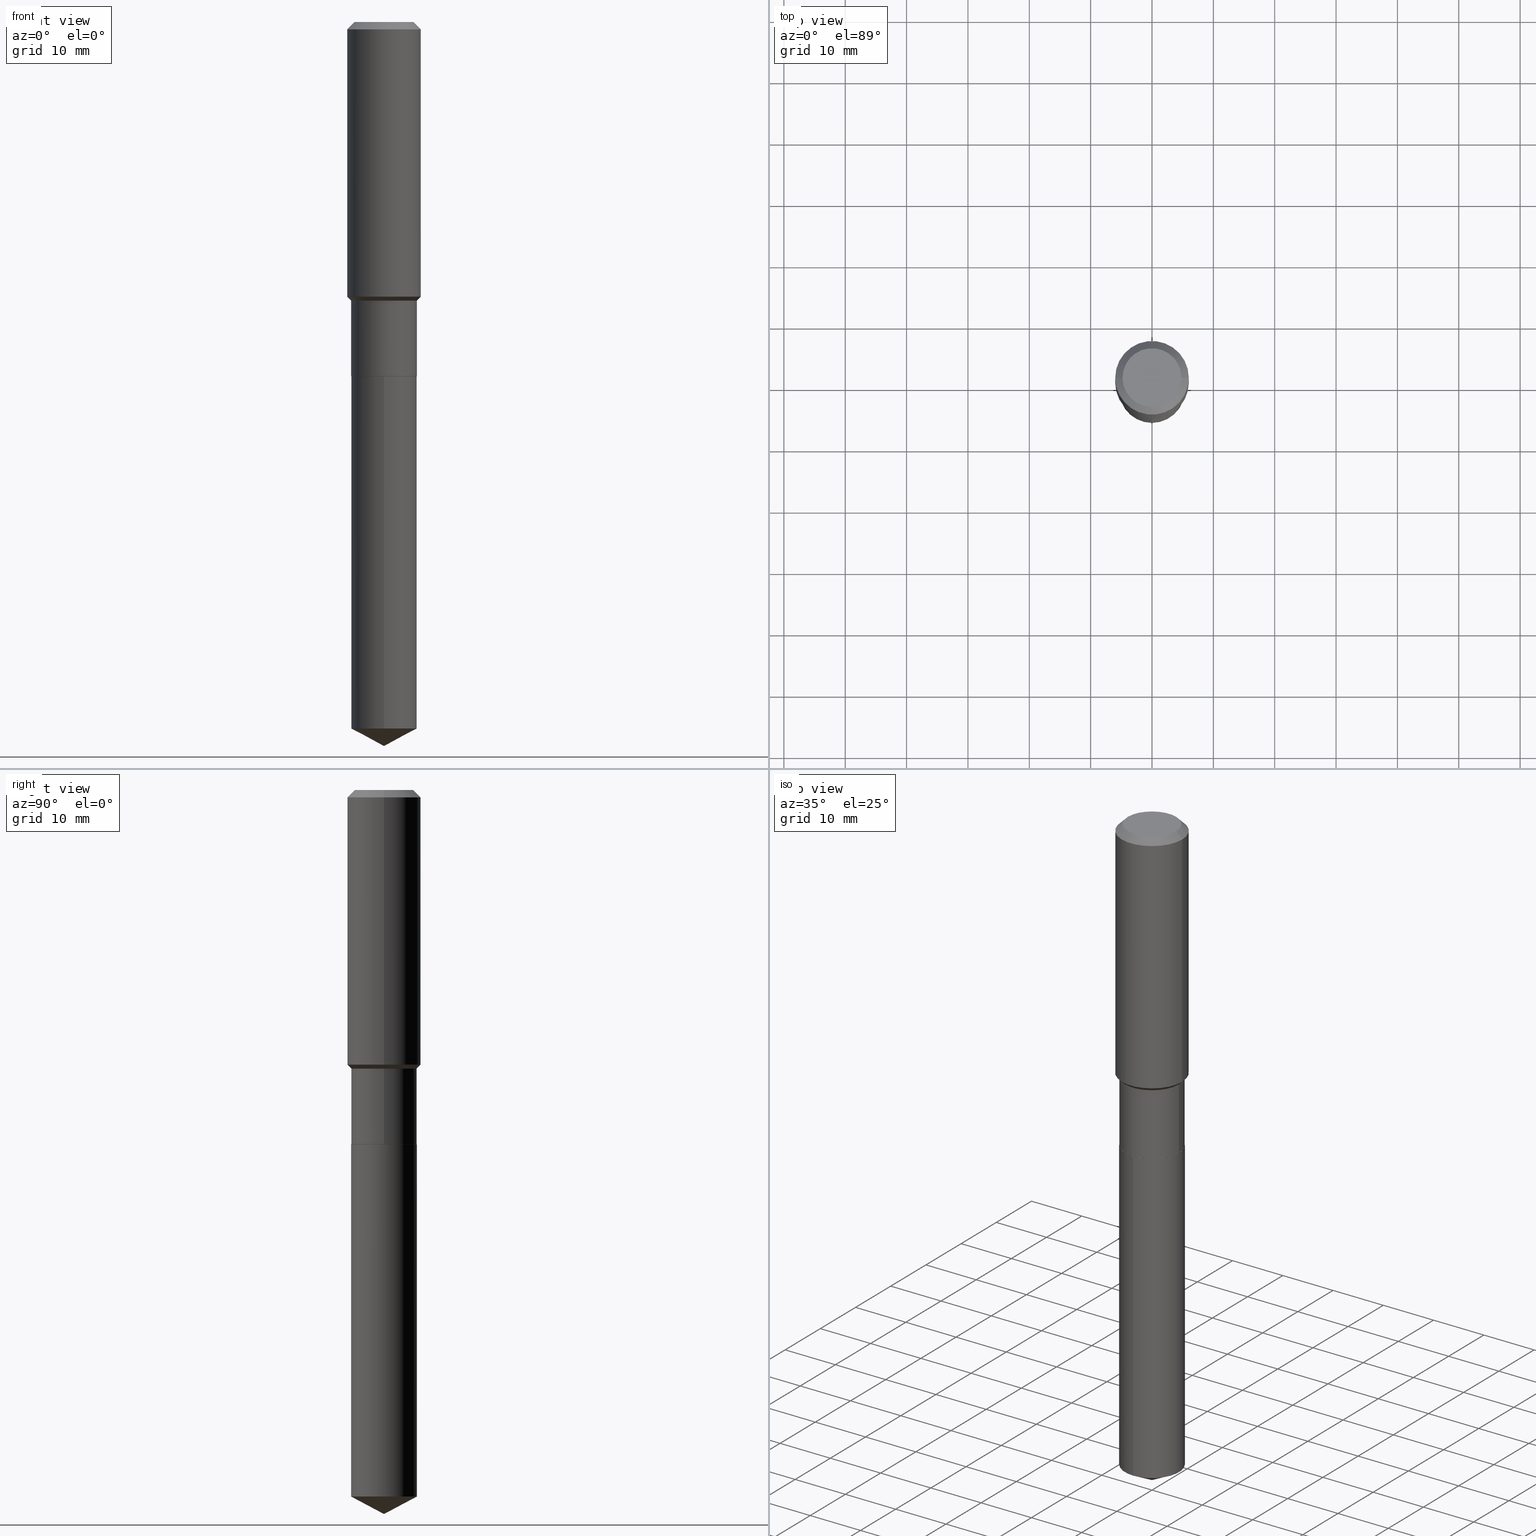
[diagram: canonical four-view strip — front | top / right | iso, engineering-drawing reading convention]
A machine part, canonical four-view strip (front | top / right | iso — engineering-drawing reading convention). The complete STEP part file that produces these views, byte-faithful:
ISO-10303-21;
HEADER;
FILE_DESCRIPTION (( 'STEP AP203' ),
    '1' );
FILE_NAME ('55024.STEP',
    '2024-04-24T16:28:49',
    ( '' ),
    ( '' ),
    'SwSTEP 2.0',
    'SolidWorks 2023',
    '' );
FILE_SCHEMA (( 'CONFIG_CONTROL_DESIGN' ));
ENDSEC;

DATA;
#1 = ORIENTED_EDGE ( 'NONE', *, *, #72, .T. ) ;
#2 = AXIS2_PLACEMENT_3D ( 'NONE', #451, #412, #225 ) ;
#3 = DESIGN_CONTEXT ( 'detailed design', #216, 'design' ) ;
#4 = EDGE_LOOP ( 'NONE', ( #407, #480, #155, #389 ) ) ;
#5 = EDGE_CURVE ( 'NONE', #267, #258, #435, .T. ) ;
#6 = EDGE_LOOP ( 'NONE', ( #343, #350, #453, #188 ) ) ;
#7 = LINE ( 'NONE', #323, #286 ) ;
#8 = CARTESIAN_POINT ( 'NONE',  ( 0.2104499999999999982, -9.405352430575661814E-15, -2.272900000000000365 ) ) ;
#9 = DIRECTION ( 'NONE',  ( -6.982962677686265922E-15, -1.000000000000000000, 2.590043132177542855E-15 ) ) ;
#10 = APPROVAL_STATUS ( 'not_yet_approved' ) ;
#11 = AXIS2_PLACEMENT_3D ( 'NONE', #361, #318, #178 ) ;
#12 = LOCAL_TIME ( 12, 28, 49.00000000000000000, #351 ) ;
#13 = CARTESIAN_POINT ( 'NONE',  ( -0.2109499999999999986, -5.588991790832597522E-15, -2.272400000000000198 ) ) ;
#14 = EDGE_CURVE ( 'NONE', #215, #448, #90, .T. ) ;
#15 = LINE ( 'NONE', #471, #386 ) ;
#16 = ADVANCED_FACE ( 'NONE', ( #135 ), #396, .T. ) ;
#17 = PERSON_AND_ORGANIZATION ( #85, #189 ) ;
#18 = DIRECTION ( 'NONE',  ( 2.445468806185136597E-29, -3.491481338843145583E-15, -1.000000000000000000 ) ) ;
#19 = CARTESIAN_POINT ( 'NONE',  ( -0.2362000000000001043, 1.678301941865357380E-15, -1.161852468318209317E-29 ) ) ;
#20 = COORDINATED_UNIVERSAL_TIME_OFFSET ( 5, 0, .BEHIND. ) ;
#21 = DIRECTION ( 'NONE',  ( 1.000000000000000000, -6.982962677686268288E-15, 0.000000000000000000 ) ) ;
#22 = CYLINDRICAL_SURFACE ( 'NONE', #331, 0.2109499999999999986 ) ;
#23 = CIRCLE ( 'NONE', #339, 0.2104499999999999982 ) ;
#24 = LINE ( 'NONE', #214, #348 ) ;
#25 = CARTESIAN_POINT ( 'NONE',  ( 5.558306049578198458E-29, -7.935787935056587256E-15, -2.272900000000000365 ) ) ;
#26 = VERTEX_POINT ( 'NONE', #415 ) ;
#27 = EDGE_CURVE ( 'NONE', #330, #327, #358, .T. ) ;
#28 = DIRECTION ( 'NONE',  ( -2.438088387897960049E-29, 3.491481338843145188E-15, 1.000000000000000000 ) ) ;
#29 = DIRECTION ( 'NONE',  ( -2.445468806185136597E-29, 3.491481338843145583E-15, 1.000000000000000000 ) ) ;
#30 = CARTESIAN_POINT ( 'NONE',  ( 4.310016497460993523E-29, -6.153561285644102082E-15, -1.762449999999999850 ) ) ;
#31 = ORIENTED_EDGE ( 'NONE', *, *, #430, .T. ) ;
#32 = CONICAL_SURFACE ( 'NONE', #449, 74.04434902938353957, 1.082104136236486491 ) ;
#33 = CC_DESIGN_APPROVAL ( #62, ( #177 ) ) ;
#34 =( NAMED_UNIT ( * ) PLANE_ANGLE_UNIT ( ) SI_UNIT ( $, .RADIAN. ) );
#35 = ORIENTED_EDGE ( 'NONE', *, *, #249, .T. ) ;
#36 = CYLINDRICAL_SURFACE ( 'NONE', #160, 0.2109499999999999709 ) ;
#37 = ORIENTED_EDGE ( 'NONE', *, *, #112, .T. ) ;
#38 = PRODUCT_RELATED_PRODUCT_CATEGORY ( 'detail', '', ( #344 ) ) ;
#39 = FACE_OUTER_BOUND ( 'NONE', #349, .T. ) ;
#40 = CARTESIAN_POINT ( 'NONE',  ( -9.427742298522546243E-47, 1.346031739168365344E-32, 3.855188123715862256E-18 ) ) ;
#41 = EDGE_CURVE ( 'NONE', #142, #136, #338, .T. ) ;
#42 = ADVANCED_FACE ( 'NONE', ( #233 ), #46, .T. ) ;
#43 = ORIENTED_EDGE ( 'NONE', *, *, #63, .T. ) ;
#44 = CLOSED_SHELL ( 'NONE', ( #175, #89, #388, #103, #55, #42, #262, #464, #194, #149, #266, #213 ) ) ;
#45 = AXIS2_PLACEMENT_3D ( 'NONE', #439, #364, #21 ) ;
#46 = CYLINDRICAL_SURFACE ( 'NONE', #93, 0.2109499999999999709 ) ;
#47 = ORIENTED_EDGE ( 'NONE', *, *, #355, .F. ) ;
#48 = CARTESIAN_POINT ( 'NONE',  ( 0.000000000000000000, 0.000000000000000000, 0.000000000000000000 ) ) ;
#49 = PERSON_AND_ORGANIZATION_ROLE ( 'creator' ) ;
#50 = AXIS2_PLACEMENT_3D ( 'NONE', #181, #340, #332 ) ;
#51 = DIRECTION ( 'NONE',  ( 1.000000000000000000, -6.982962677686271444E-15, 0.000000000000000000 ) ) ;
#52 = EDGE_LOOP ( 'NONE', ( #282, #301, #192, #185 ) ) ;
#53 = DIRECTION ( 'NONE',  ( 1.000000000000000000, -6.982962677686268288E-15, 0.000000000000000000 ) ) ;
#54 = PERSON_AND_ORGANIZATION ( #85, #189 ) ;
#55 = ADVANCED_FACE ( 'NONE', ( #257 ), #36, .T. ) ;
#56 = DIRECTION ( 'NONE',  ( 0.7071067811864267805, -2.468850131080992517E-15, 0.7071067811866682540 ) ) ;
#57 = DIRECTION ( 'NONE',  ( -2.445468806185136877E-29, 3.491481338843145188E-15, 1.000000000000000000 ) ) ;
#58 = DATE_TIME_ROLE ( 'creation_date' ) ;
#59 = AXIS2_PLACEMENT_3D ( 'NONE', #264, #341, #51 ) ;
#60 = FACE_OUTER_BOUND ( 'NONE', #226, .T. ) ;
#61 = EDGE_LOOP ( 'NONE', ( #37, #420, #483, #378 ) ) ;
#62 = APPROVAL ( #10, 'UNSPECIFIED' ) ;
#63 = EDGE_CURVE ( 'NONE', #367, #406, #120, .T. ) ;
#64 = FACE_OUTER_BOUND ( 'NONE', #61, .T. ) ;
#65 = VECTOR ( 'NONE', #56, 39.37007874015748143 ) ;
#66 = VECTOR ( 'NONE', #273, 39.37007874015748854 ) ;
#67 = ORIENTED_EDGE ( 'NONE', *, *, #324, .F. ) ;
#68 = ORIENTED_EDGE ( 'NONE', *, *, #179, .F. ) ;
#69 = DIRECTION ( 'NONE',  ( -2.445577934825511487E-29, 3.491325060418912334E-15, 1.000000000000000000 ) ) ;
#70 = CARTESIAN_POINT ( 'NONE',  ( 0.000000000000000000, 0.000000000000000000, 0.000000000000000000 ) ) ;
#71 = ORIENTED_EDGE ( 'NONE', *, *, #411, .F. ) ;
#72 = EDGE_CURVE ( 'NONE', #367, #335, #229, .T. ) ;
#73 = DIRECTION ( 'NONE',  ( 1.000000000000000000, -6.982962677686266711E-15, 4.876185090822587894E-29 ) ) ;
#74 = ORIENTED_EDGE ( 'NONE', *, *, #456, .T. ) ;
#75 = DIRECTION ( 'NONE',  ( 2.438088387897960049E-29, -3.491481338843145188E-15, -1.000000000000000000 ) ) ;
#76 = EDGE_CURVE ( 'NONE', #268, #144, #408, .T. ) ;
#77 = AXIS2_PLACEMENT_3D ( 'NONE', #329, #69, #334 ) ;
#78 = APPROVAL_PERSON_ORGANIZATION ( #17, #106, #123 ) ;
#79 = ORIENTED_EDGE ( 'NONE', *, *, #76, .F. ) ;
#80 = APPROVAL_DATE_TIME ( #92, #62 ) ;
#81 = ORIENTED_EDGE ( 'NONE', *, *, #27, .F. ) ;
#82 = PRODUCT_DEFINITION_SHAPE ( 'NONE', 'NONE',  #177 ) ;
#83 = DATE_AND_TIME ( #395, #122 ) ;
#84 = ORIENTED_EDGE ( 'NONE', *, *, #440, .T. ) ;
#85 = PERSON ( 'UNSPECIFIED', 'UNSPECIFIED', 'UNSPECIFIED', ('UNSPECIFIED'), ('UNSPECIFIED'), ('UNSPECIFIED') ) ;
#86 = CARTESIAN_POINT ( 'NONE',  ( 0.1889600000000000168, -1.540873453589747738E-15, 3.855188123725863225E-18 ) ) ;
#87 = PERSON_AND_ORGANIZATION ( #85, #189 ) ;
#88 = APPROVAL_ROLE ( '' ) ;
#89 = ADVANCED_FACE ( 'NONE', ( #281 ), #201, .T. ) ;
#90 = LINE ( 'NONE', #98, #147 ) ;
#91 = LINE ( 'NONE', #19, #121 ) ;
#92 = DATE_AND_TIME ( #163, #12 ) ;
#93 = AXIS2_PLACEMENT_3D ( 'NONE', #48, #384, #446 ) ;
#94 = CALENDAR_DATE ( 2024, 24, 4 ) ;
#95 = CARTESIAN_POINT ( 'NONE',  ( 1.155239464041865331E-30, -1.649375784469511612E-16, -0.04724000000000027483 ) ) ;
#96 = CONICAL_SURFACE ( 'NONE', #45, 0.2109499999999999431, 0.7853981633974489451 ) ;
#97 = DIRECTION ( 'NONE',  ( 1.000000000000000000, -6.982962677686271444E-15, 0.000000000000000000 ) ) ;
#98 = CARTESIAN_POINT ( 'NONE',  ( -0.2109499999999999709, 1.498889901085931135E-15, -1.037649357289272242E-29 ) ) ;
#99 = DIRECTION ( 'NONE',  ( 2.445468806185136597E-29, -3.491481338843145583E-15, -1.000000000000000000 ) ) ;
#100 = DIRECTION ( 'NONE',  ( -2.445577934825511487E-29, 3.491325060418912334E-15, 1.000000000000000000 ) ) ;
#101 = CARTESIAN_POINT ( 'NONE',  ( 4.371764584817169348E-29, -6.241721189449891562E-15, -1.787700000000000067 ) ) ;
#102 = DIRECTION ( 'NONE',  ( -6.982962677686265922E-15, -1.000000000000000000, 3.541896320645560869E-15 ) ) ;
#103 = ADVANCED_FACE ( 'NONE', ( #64 ), #96, .T. ) ;
#104 = FACE_OUTER_BOUND ( 'NONE', #52, .T. ) ;
#105 = LENGTH_MEASURE_WITH_UNIT ( LENGTH_MEASURE( 0.02539999999999999897 ), #445 );
#106 = APPROVAL ( #308, 'UNSPECIFIED' ) ;
#107 = EDGE_LOOP ( 'NONE', ( #441, #309, #79 ) ) ;
#108 = CYLINDRICAL_SURFACE ( 'NONE', #2, 0.2362000000000001043 ) ;
#109 = CONICAL_SURFACE ( 'NONE', #392, 0.2104499999999999982, 0.7853981633972775267 ) ;
#110 =( CONVERSION_BASED_UNIT ( 'INCH', #105 ) LENGTH_UNIT ( ) NAMED_UNIT ( #202 ) );
#111 = ORIENTED_EDGE ( 'NONE', *, *, #41, .T. ) ;
#112 = EDGE_CURVE ( 'NONE', #271, #448, #265, .T. ) ;
#113 = CARTESIAN_POINT ( 'NONE',  ( -0.2109499999999999431, -5.588991790832597522E-15, -1.787700000000000067 ) ) ;
#114 = ORIENTED_EDGE ( 'NONE', *, *, #370, .T. ) ;
#115 = AXIS2_PLACEMENT_3D ( 'NONE', #25, #470, #326 ) ;
#116 = CARTESIAN_POINT ( 'NONE',  ( 1.498889901085986750E-15, 0.2109499999999920883, -2.272900000000001253 ) ) ;
#117 = APPROVAL ( #354, 'UNSPECIFIED' ) ;
#118 = EDGE_LOOP ( 'NONE', ( #47, #261, #84, #302 ) ) ;
#119 = EDGE_CURVE ( 'NONE', #271, #26, #457, .T. ) ;
#120 = LINE ( 'NONE', #8, #65 ) ;
#121 = VECTOR ( 'NONE', #57, 39.37007874015748143 ) ;
#122 = LOCAL_TIME ( 12, 28, 49.00000000000000000, #305 ) ;
#123 = APPROVAL_ROLE ( '' ) ;
#124 = DIRECTION ( 'NONE',  ( 1.000000000000000000, 0.000000000000000000, 0.000000000000000000 ) ) ;
#125 = CARTESIAN_POINT ( 'NONE',  ( 0.000000000000000000, 0.000000000000000000, 0.000000000000000000 ) ) ;
#126 = CARTESIAN_POINT ( 'NONE',  ( 5.558306049578198458E-29, -7.935787935056587256E-15, -2.272900000000000365 ) ) ;
#127 = CIRCLE ( 'NONE', #59, 0.2109499999999999986 ) ;
#128 = AXIS2_PLACEMENT_3D ( 'NONE', #131, #141, #366 ) ;
#129 = DIRECTION ( 'NONE',  ( -2.445468806185136597E-29, 3.491481338843145583E-15, 1.000000000000000000 ) ) ;
#130 = DATE_AND_TIME ( #94, #304 ) ;
#131 = CARTESIAN_POINT ( 'NONE',  ( 5.558306049578197337E-29, -7.935787935056587256E-15, -2.272900000000000365 ) ) ;
#132 = ORIENTED_EDGE ( 'NONE', *, *, #251, .F. ) ;
#133 = APPROVAL_ROLE ( '' ) ;
#134 = DIRECTION ( 'NONE',  ( -0.7071067811865479058, 7.493145998870355738E-15, 0.7071067811865470176 ) ) ;
#135 = FACE_OUTER_BOUND ( 'NONE', #235, .T. ) ;
#136 = VERTEX_POINT ( 'NONE', #151 ) ;
#137 = AXIS2_PLACEMENT_3D ( 'NONE', #239, #394, #310 ) ;
#138 = SECURITY_CLASSIFICATION ( '', '', #462 ) ;
#139 = MANIFOLD_SOLID_BREP ( 'Body-Move/Copy2[2]', #44 ) ;
#140 = DIRECTION ( 'NONE',  ( -2.445468806185136877E-29, 3.491481338843145188E-15, 1.000000000000000000 ) ) ;
#141 = DIRECTION ( 'NONE',  ( -2.445577934825511487E-29, 3.491325060418912334E-15, 1.000000000000000000 ) ) ;
#142 = VERTEX_POINT ( 'NONE', #154 ) ;
#143 = DIRECTION ( 'NONE',  ( -1.000000000000000000, 6.982962677686266711E-15, 0.000000000000000000 ) ) ;
#144 = VERTEX_POINT ( 'NONE', #306 ) ;
#145 = FACE_OUTER_BOUND ( 'NONE', #200, .T. ) ;
#146 = CYLINDRICAL_SURFACE ( 'NONE', #232, 0.2362000000000001043 ) ;
#147 = VECTOR ( 'NONE', #246, 39.37007874015748143 ) ;
#148 = CIRCLE ( 'NONE', #212, 0.2109499999999999986 ) ;
#149 = ADVANCED_FACE ( 'NONE', ( #461 ), #190, .F. ) ;
#150 = EDGE_CURVE ( 'NONE', #479, #268, #391, .T. ) ;
#151 = CARTESIAN_POINT ( 'NONE',  ( -0.2361999999999999933, -1.480947490180168921E-15, -0.04724000000000027483 ) ) ;
#152 = ORIENTED_EDGE ( 'NONE', *, *, #411, .T. ) ;
#153 = CONICAL_SURFACE ( 'NONE', #115, 0.2104499999999999982, 0.7853981633972775267 ) ;
#154 = CARTESIAN_POINT ( 'NONE',  ( 0.2361999999999999933, -1.814313362916447440E-15, -0.04724000000000027483 ) ) ;
#155 = ORIENTED_EDGE ( 'NONE', *, *, #312, .T. ) ;
#156 = PERSON_AND_ORGANIZATION_ROLE ( 'design_owner' ) ;
#157 = COORDINATED_UNIVERSAL_TIME_OFFSET ( 5, 0, .BEHIND. ) ;
#158 = DIRECTION ( 'NONE',  ( -1.000000000000000000, 6.982962677686265922E-15, -4.876176775795935793E-29 ) ) ;
#159 = EDGE_CURVE ( 'NONE', #215, #406, #127, .T. ) ;
#160 = AXIS2_PLACEMENT_3D ( 'NONE', #70, #222, #184 ) ;
#161 = CIRCLE ( 'NONE', #280, 0.2109499999999999986 ) ;
#162 = CC_DESIGN_APPROVAL ( #106, ( #287 ) ) ;
#163 = CALENDAR_DATE ( 2024, 24, 4 ) ;
#164 = DIRECTION ( 'NONE',  ( -2.445577934825511206E-29, 3.491325060418912334E-15, 1.000000000000000000 ) ) ;
#165 = CALENDAR_DATE ( 2024, 24, 4 ) ;
#166 = FACE_OUTER_BOUND ( 'NONE', #107, .T. ) ;
#167 = CARTESIAN_POINT ( 'NONE',  ( -0.2361999999999999933, 1.484438206022545019E-15, -0.04724000000000027483 ) ) ;
#168 = ORIENTED_EDGE ( 'NONE', *, *, #5, .F. ) ;
#169 = DIRECTION ( 'NONE',  ( -2.445468806185136597E-29, 3.491481338843145583E-15, 1.000000000000000000 ) ) ;
#170 = VECTOR ( 'NONE', #311, 39.37007874015748854 ) ;
#171 = FACE_OUTER_BOUND ( 'NONE', #4, .T. ) ;
#172 = EDGE_CURVE ( 'NONE', #330, #142, #7, .T. ) ;
#173 = CARTESIAN_POINT ( 'NONE',  ( -0.2104499999999999982, -6.440450747649456231E-15, -2.272900000000000365 ) ) ;
#174 = EDGE_LOOP ( 'NONE', ( #74, #298 ) ) ;
#175 = ADVANCED_FACE ( 'NONE', ( #423 ), #153, .T. ) ;
#176 = CARTESIAN_POINT ( 'NONE',  ( 0.2109499999999999431, -7.714777166307809916E-15, -1.787700000000000067 ) ) ;
#177 = PRODUCT_DEFINITION ( 'UNKNOWN', '', #287, #3 ) ;
#178 = DIRECTION ( 'NONE',  ( 1.000000000000000000, -6.982962677686264344E-15, 0.000000000000000000 ) ) ;
#179 = EDGE_CURVE ( 'NONE', #406, #215, #486, .T. ) ;
#180 = CIRCLE ( 'NONE', #137, 0.2361999999999999933 ) ;
#181 = CARTESIAN_POINT ( 'NONE',  ( 5.558306049578197337E-29, -7.935787935056587256E-15, -2.272900000000000365 ) ) ;
#182 = DIRECTION ( 'NONE',  ( 0.7071067811865453523, -7.319954787623248157E-15, -0.7071067811865496822 ) ) ;
#183 = EDGE_LOOP ( 'NONE', ( #206, #369, #31, #482 ) ) ;
#184 = DIRECTION ( 'NONE',  ( 1.000000000000000000, -6.982962677686266711E-15, 4.876176775795935793E-29 ) ) ;
#185 = ORIENTED_EDGE ( 'NONE', *, *, #440, .F. ) ;
#186 = CARTESIAN_POINT ( 'NONE',  ( 1.155239464041865331E-30, -1.649375784469511612E-16, -0.04724000000000027483 ) ) ;
#187 = AXIS2_PLACEMENT_3D ( 'NONE', #433, #29, #303 ) ;
#188 = ORIENTED_EDGE ( 'NONE', *, *, #430, .F. ) ;
#189 = ORGANIZATION ( 'UNSPECIFIED', 'UNSPECIFIED', '' ) ;
#190 = PLANE ( 'NONE',  #203 ) ;
#191 = ORIENTED_EDGE ( 'NONE', *, *, #456, .F. ) ;
#192 = ORIENTED_EDGE ( 'NONE', *, *, #41, .F. ) ;
#193 = CC_DESIGN_DATE_AND_TIME_ASSIGNMENT ( #83, #58, ( #177 ) ) ;
#194 = ADVANCED_FACE ( 'NONE', ( #60 ), #230, .T. ) ;
#195 = DATE_AND_TIME ( #165, #360 ) ;
#196 = AXIS2_PLACEMENT_3D ( 'NONE', #30, #224, #256 ) ;
#197 = CARTESIAN_POINT ( 'NONE',  ( 5.558306049578197337E-29, -7.935787935056587256E-15, -2.272900000000000365 ) ) ;
#198 = PERSON_AND_ORGANIZATION_ROLE ( 'classification_officer' ) ;
#199 = ADVANCED_FACE ( 'NONE', ( #166 ), #32, .T. ) ;
#200 = EDGE_LOOP ( 'NONE', ( #328, #132 ) ) ;
#201 = CONICAL_SURFACE ( 'NONE', #481, 0.2361999999999999933, 0.7853981633974452814 ) ;
#202 = DIMENSIONAL_EXPONENTS ( 1.000000000000000000, 0.000000000000000000, 0.000000000000000000, 0.000000000000000000, 0.000000000000000000, 0.000000000000000000, 0.000000000000000000 ) ;
#203 = AXIS2_PLACEMENT_3D ( 'NONE', #270, #75, #158 ) ;
#204 = FACE_OUTER_BOUND ( 'NONE', #372, .T. ) ;
#205 = APPLICATION_PROTOCOL_DEFINITION ( 'international standard', 'config_control_design', 1994, #216 ) ;
#206 = ORIENTED_EDGE ( 'NONE', *, *, #14, .F. ) ;
#207 = DIRECTION ( 'NONE',  ( -0.7071067811865453523, 2.468850131082234184E-15, -0.7071067811865496822 ) ) ;
#208 = CARTESIAN_POINT ( 'NONE',  ( -0.1889600000000000168, 1.401969416799070942E-15, 3.855188123706346622E-18 ) ) ;
#209 = CC_DESIGN_PERSON_AND_ORGANIZATION_ASSIGNMENT ( #317, #156, ( #344 ) ) ;
#210 = CARTESIAN_POINT ( 'NONE',  ( 5.557083315175104535E-29, -7.934042194387164964E-15, -2.272400000000000198 ) ) ;
#211 = CARTESIAN_POINT ( 'NONE',  ( 4.371764584817169348E-29, -6.241721189449891562E-15, -1.787700000000000067 ) ) ;
#212 = AXIS2_PLACEMENT_3D ( 'NONE', #322, #316, #9 ) ;
#213 = ADVANCED_FACE ( 'NONE', ( #359 ), #109, .T. ) ;
#214 = CARTESIAN_POINT ( 'NONE',  ( 0.2109499999999999709, -1.473055976857917762E-15, 1.028629490854152488E-29 ) ) ;
#215 = VERTEX_POINT ( 'NONE', #13 ) ;
#216 = APPLICATION_CONTEXT ( 'configuration controlled 3d designs of mechanical parts and assemblies' ) ;
#217 = CARTESIAN_POINT ( 'NONE',  ( 1.498889901086042364E-15, 0.2109499999999842335, -4.533835895391012727 ) ) ;
#218 = LINE ( 'NONE', #173, #436 ) ;
#219 = ORIENTED_EDGE ( 'NONE', *, *, #312, .F. ) ;
#220 = VECTOR ( 'NONE', #207, 39.37007874015748143 ) ;
#221 = DIRECTION ( 'NONE',  ( -2.445468806185136597E-29, 3.491481338843145583E-15, 1.000000000000000000 ) ) ;
#222 = DIRECTION ( 'NONE',  ( -2.445468806185136597E-29, 3.491481338843145583E-15, 1.000000000000000000 ) ) ;
#223 = VERTEX_POINT ( 'NONE', #277 ) ;
#224 = DIRECTION ( 'NONE',  ( -2.445468806185136597E-29, 3.491481338843145583E-15, 1.000000000000000000 ) ) ;
#225 = DIRECTION ( 'NONE',  ( 1.000000000000000000, -6.982962677686266711E-15, 4.876176775795935793E-29 ) ) ;
#226 = EDGE_LOOP ( 'NONE', ( #333, #191, #422, #416 ) ) ;
#227 = DIRECTION ( 'NONE',  ( -2.445468806185136597E-29, 3.491481338843145583E-15, 1.000000000000000000 ) ) ;
#228 = EDGE_CURVE ( 'NONE', #26, #223, #402, .T. ) ;
#229 = CIRCLE ( 'NONE', #11, 0.2104499999999999982 ) ;
#230 = CONICAL_SURFACE ( 'NONE', #238, 0.2361999999999999933, 0.7853981633974452814 ) ;
#231 = DIRECTION ( 'NONE',  ( 1.000000000000000000, -6.982962677686266711E-15, 4.876185090822587894E-29 ) ) ;
#232 = AXIS2_PLACEMENT_3D ( 'NONE', #296, #221, #263 ) ;
#233 = FACE_OUTER_BOUND ( 'NONE', #183, .T. ) ;
#234 = APPROVAL_DATE_TIME ( #195, #106 ) ;
#235 = EDGE_LOOP ( 'NONE', ( #236, #454, #67 ) ) ;
#236 = ORIENTED_EDGE ( 'NONE', *, *, #383, .F. ) ;
#237 = APPLICATION_CONTEXT ( 'configuration controlled 3d designs of mechanical parts and assemblies' ) ;
#238 = AXIS2_PLACEMENT_3D ( 'NONE', #95, #18, #399 ) ;
#239 = CARTESIAN_POINT ( 'NONE',  ( 1.155239464041865331E-30, -1.649375784469511612E-16, -0.04724000000000027483 ) ) ;
#240 = CALENDAR_DATE ( 2024, 24, 4 ) ;
#241 = PERSON_AND_ORGANIZATION_ROLE ( 'design_supplier' ) ;
#242 = PERSON_AND_ORGANIZATION ( #85, #189 ) ;
#243 = CARTESIAN_POINT ( 'NONE',  ( 5.558306049578197337E-29, -7.935787935056587256E-15, -2.272900000000000365 ) ) ;
#244 = CARTESIAN_POINT ( 'NONE',  ( -0.2104499999999999982, -6.437801520475345030E-15, -2.272900000000000365 ) ) ;
#245 = CC_DESIGN_PERSON_AND_ORGANIZATION_ASSIGNMENT ( #426, #49, ( #287 ) ) ;
#246 = DIRECTION ( 'NONE',  ( -2.445468806185136877E-29, 3.491481338843145188E-15, 1.000000000000000000 ) ) ;
#247 = AXIS2_PLACEMENT_3D ( 'NONE', #186, #342, #489 ) ;
#248 = VECTOR ( 'NONE', #428, 39.37007874015748143 ) ;
#249 = EDGE_CURVE ( 'NONE', #268, #258, #463, .T. ) ;
#250 = DIRECTION ( 'NONE',  ( -6.982962677686265922E-15, -1.000000000000000000, 3.541896320645560869E-15 ) ) ;
#251 = EDGE_CURVE ( 'NONE', #335, #367, #23, .T. ) ;
#252 = ORIENTED_EDGE ( 'NONE', *, *, #315, .F. ) ;
#253 = CARTESIAN_POINT ( 'NONE',  ( 1.155239464041865331E-30, -1.649375784469511612E-16, -0.04724000000000027483 ) ) ;
#254 = DIRECTION ( 'NONE',  ( 1.000000000000000000, -6.982962677686265922E-15, 4.876176775795935793E-29 ) ) ;
#255 = ORIENTED_EDGE ( 'NONE', *, *, #288, .F. ) ;
#256 = DIRECTION ( 'NONE',  ( 1.000000000000000000, -6.982962677686266711E-15, 0.000000000000000000 ) ) ;
#257 = FACE_OUTER_BOUND ( 'NONE', #6, .T. ) ;
#258 = VERTEX_POINT ( 'NONE', #353 ) ;
#259 = AXIS2_PLACEMENT_3D ( 'NONE', #210, #320, #97 ) ;
#260 = CC_DESIGN_PERSON_AND_ORGANIZATION_ASSIGNMENT ( #87, #198, ( #138 ) ) ;
#261 = ORIENTED_EDGE ( 'NONE', *, *, #442, .T. ) ;
#262 = ADVANCED_FACE ( 'NONE', ( #39 ), #475, .T. ) ;
#263 = DIRECTION ( 'NONE',  ( 1.000000000000000000, -6.982962677686266711E-15, 4.876176775795935793E-29 ) ) ;
#264 = CARTESIAN_POINT ( 'NONE',  ( 5.557083315175104535E-29, -7.934042194387164964E-15, -2.272400000000000198 ) ) ;
#265 = CIRCLE ( 'NONE', #294, 0.2109499999999999431 ) ;
#266 = ADVANCED_FACE ( 'NONE', ( #145 ), #292, .F. ) ;
#267 = VERTEX_POINT ( 'NONE', #404 ) ;
#268 = VERTEX_POINT ( 'NONE', #217 ) ;
#269 = CARTESIAN_POINT ( 'NONE',  ( 5.558306049578198458E-29, -7.935787935056587256E-15, -2.272900000000000365 ) ) ;
#270 = CARTESIAN_POINT ( 'NONE',  ( -4.713871149261273121E-47, 6.730158695841826722E-33, 1.927594061857931128E-18 ) ) ;
#271 = VERTEX_POINT ( 'NONE', #176 ) ;
#272 = COORDINATED_UNIVERSAL_TIME_OFFSET ( 5, 0, .BEHIND. ) ;
#273 = DIRECTION ( 'NONE',  ( 0.7071067811865479058, -2.468850131082261399E-15, 0.7071067811865470176 ) ) ;
#274 = VECTOR ( 'NONE', #134, 39.37007874015748854 ) ;
#275 = DIRECTION ( 'NONE',  ( -2.445577934825511487E-29, 3.491325060418912334E-15, 1.000000000000000000 ) ) ;
#276 = DATE_AND_TIME ( #240, #460 ) ;
#277 = CARTESIAN_POINT ( 'NONE',  ( -0.2362000000000002153, -4.475259343778742532E-15, -1.762449999999999850 ) ) ;
#278 = ORIENTED_EDGE ( 'NONE', *, *, #324, .T. ) ;
#279 = AXIS2_PLACEMENT_3D ( 'NONE', #40, #227, #231 ) ;
#280 = AXIS2_PLACEMENT_3D ( 'NONE', #371, #100, #374 ) ;
#281 = FACE_OUTER_BOUND ( 'NONE', #447, .T. ) ;
#282 = ORIENTED_EDGE ( 'NONE', *, *, #228, .T. ) ;
#283 = LINE ( 'NONE', #357, #313 ) ;
#284 = DIRECTION ( 'NONE',  ( -2.445577934825511487E-29, 3.491325060418912334E-15, 1.000000000000000000 ) ) ;
#285 = CARTESIAN_POINT ( 'NONE',  ( -8.492068881255948770E-28, 1.212326911002409524E-13, 34.72407874015748064 ) ) ;
#286 = VECTOR ( 'NONE', #182, 39.37007874015748143 ) ;
#287 = PRODUCT_DEFINITION_FORMATION_WITH_SPECIFIED_SOURCE ( 'ANY', '', #344, .NOT_KNOWN. ) ;
#288 = EDGE_CURVE ( 'NONE', #448, #223, #363, .T. ) ;
#289 = ORIENTED_EDGE ( 'NONE', *, *, #442, .F. ) ;
#290 = FACE_OUTER_BOUND ( 'NONE', #490, .T. ) ;
#291 = EDGE_LOOP ( 'NONE', ( #71, #444, #43, #458 ) ) ;
#292 = PLANE ( 'NONE',  #427 ) ;
#293 = MANIFOLD_SOLID_BREP ( 'Body-Move/Copy2[1]', #474 ) ;
#294 = AXIS2_PLACEMENT_3D ( 'NONE', #211, #169, #325 ) ;
#295 =( GEOMETRIC_REPRESENTATION_CONTEXT ( 3 ) GLOBAL_UNCERTAINTY_ASSIGNED_CONTEXT ( ( #307 ) ) GLOBAL_UNIT_ASSIGNED_CONTEXT ( ( #110, #34, #417 ) ) REPRESENTATION_CONTEXT ( 'NONE', 'WORKASPACE' ) );
#296 = CARTESIAN_POINT ( 'NONE',  ( 0.000000000000000000, 0.000000000000000000, 0.000000000000000000 ) ) ;
#297 = FACE_OUTER_BOUND ( 'NONE', #118, .T. ) ;
#298 = ORIENTED_EDGE ( 'NONE', *, *, #27, .T. ) ;
#299 = ADVANCED_BREP_SHAPE_REPRESENTATION ( '55024', ( #293, #139, #477 ), #295 ) ;
#300 = CARTESIAN_POINT ( 'NONE',  ( 0.2109499999999999431, -7.714777166307809916E-15, -1.787700000000000067 ) ) ;
#301 = ORIENTED_EDGE ( 'NONE', *, *, #355, .T. ) ;
#302 = ORIENTED_EDGE ( 'NONE', *, *, #347, .F. ) ;
#303 = DIRECTION ( 'NONE',  ( 1.000000000000000000, -6.982962677686266711E-15, 0.000000000000000000 ) ) ;
#304 = LOCAL_TIME ( 12, 28, 49.00000000000000000, #20 ) ;
#305 = COORDINATED_UNIVERSAL_TIME_OFFSET ( 5, 0, .BEHIND. ) ;
#306 = CARTESIAN_POINT ( 'NONE',  ( -1.473055976857807322E-15, -0.2109500000000158471, -4.533835895391010951 ) ) ;
#307 = UNCERTAINTY_MEASURE_WITH_UNIT (LENGTH_MEASURE( 1.000000000000000082E-05 ), #110, 'distance_accuracy_value', 'NONE');
#308 = APPROVAL_STATUS ( 'not_yet_approved' ) ;
#309 = ORIENTED_EDGE ( 'NONE', *, *, #383, .T. ) ;
#310 = DIRECTION ( 'NONE',  ( 1.000000000000000000, -6.982962677686266711E-15, 0.000000000000000000 ) ) ;
#311 = DIRECTION ( 'NONE',  ( 6.273719981627764499E-15, 0.8829475928589295419, 0.4694715627858856433 ) ) ;
#312 = EDGE_CURVE ( 'NONE', #144, #267, #283, .T. ) ;
#313 = VECTOR ( 'NONE', #164, 39.37007874015748143 ) ;
#314 = APPROVAL_PERSON_ORGANIZATION ( #393, #117, #133 ) ;
#315 = EDGE_CURVE ( 'NONE', #327, #136, #434, .T. ) ;
#316 = DIRECTION ( 'NONE',  ( -2.445577934825511487E-29, 3.491325060418912334E-15, 1.000000000000000000 ) ) ;
#317 = PERSON_AND_ORGANIZATION ( #85, #189 ) ;
#318 = DIRECTION ( 'NONE',  ( -2.445468806185136597E-29, 3.491481338843145583E-15, 1.000000000000000000 ) ) ;
#319 = APPLICATION_PROTOCOL_DEFINITION ( 'international standard', 'config_control_design', 1994, #237 ) ;
#320 = DIRECTION ( 'NONE',  ( -2.445468806185136597E-29, 3.491481338843145583E-15, 1.000000000000000000 ) ) ;
#321 = CIRCLE ( 'NONE', #387, 0.1889600000000000168 ) ;
#322 = CARTESIAN_POINT ( 'NONE',  ( 1.108760098740141492E-28, -1.582945008663589642E-14, -4.533835895391011839 ) ) ;
#323 = CARTESIAN_POINT ( 'NONE',  ( 0.2361999999999999933, -1.785387205520586782E-15, -0.04724000000000027483 ) ) ;
#324 = EDGE_CURVE ( 'NONE', #144, #268, #148, .T. ) ;
#325 = DIRECTION ( 'NONE',  ( 1.000000000000000000, -6.982962677686268288E-15, 0.000000000000000000 ) ) ;
#326 = DIRECTION ( 'NONE',  ( 1.000000000000000000, -6.982962677686264344E-15, 0.000000000000000000 ) ) ;
#327 = VERTEX_POINT ( 'NONE', #208 ) ;
#328 = ORIENTED_EDGE ( 'NONE', *, *, #72, .F. ) ;
#329 = CARTESIAN_POINT ( 'NONE',  ( 1.108760098740141492E-28, -1.582945008663589642E-14, -4.533835895391011839 ) ) ;
#330 = VERTEX_POINT ( 'NONE', #86 ) ;
#331 = AXIS2_PLACEMENT_3D ( 'NONE', #197, #362, #465 ) ;
#332 = DIRECTION ( 'NONE',  ( 6.982962677686265922E-15, 1.000000000000000000, -3.491325060418912334E-15 ) ) ;
#333 = ORIENTED_EDGE ( 'NONE', *, *, #172, .F. ) ;
#334 = DIRECTION ( 'NONE',  ( -6.982962677686265922E-15, -1.000000000000000000, 2.590043132177542855E-15 ) ) ;
#335 = VERTEX_POINT ( 'NONE', #244 ) ;
#336 = DIRECTION ( 'NONE',  ( -2.445468806185136597E-29, 3.491481338843145583E-15, 1.000000000000000000 ) ) ;
#337 = DIRECTION ( 'NONE',  ( -2.445468806185136597E-29, 3.491481338843145583E-15, 1.000000000000000000 ) ) ;
#338 = CIRCLE ( 'NONE', #247, 0.2361999999999999933 ) ;
#339 = AXIS2_PLACEMENT_3D ( 'NONE', #269, #431, #424 ) ;
#340 = DIRECTION ( 'NONE',  ( 2.445577934825511206E-29, -3.491325060418912334E-15, -1.000000000000000000 ) ) ;
#341 = DIRECTION ( 'NONE',  ( -2.445468806185136597E-29, 3.491481338843145583E-15, 1.000000000000000000 ) ) ;
#342 = DIRECTION ( 'NONE',  ( -2.445468806185136597E-29, 3.491481338843145583E-15, 1.000000000000000000 ) ) ;
#343 = ORIENTED_EDGE ( 'NONE', *, *, #179, .T. ) ;
#344 = PRODUCT ( '55024', '55024', '', ( #390 ) ) ;
#345 = PERSON_AND_ORGANIZATION ( #85, #189 ) ;
#346 = AXIS2_PLACEMENT_3D ( 'NONE', #243, #275, #473 ) ;
#347 = EDGE_CURVE ( 'NONE', #136, #142, #180, .T. ) ;
#348 = VECTOR ( 'NONE', #140, 39.37007874015748143 ) ;
#349 = EDGE_LOOP ( 'NONE', ( #255, #114, #455, #289 ) ) ;
#350 = ORIENTED_EDGE ( 'NONE', *, *, #14, .T. ) ;
#351 = COORDINATED_UNIVERSAL_TIME_OFFSET ( 5, 0, .BEHIND. ) ;
#352 = CC_DESIGN_PERSON_AND_ORGANIZATION_ASSIGNMENT ( #345, #241, ( #287 ) ) ;
#353 = CARTESIAN_POINT ( 'NONE',  ( 1.498889901086042759E-15, 0.2109499999999921160, -2.272900000000001253 ) ) ;
#354 = APPROVAL_STATUS ( 'not_yet_approved' ) ;
#355 = EDGE_CURVE ( 'NONE', #223, #136, #91, .T. ) ;
#356 = ORIENTED_EDGE ( 'NONE', *, *, #413, .T. ) ;
#357 = CARTESIAN_POINT ( 'NONE',  ( -1.473055976857862148E-15, -0.2109500000000079367, -2.272899999999999476 ) ) ;
#358 = CIRCLE ( 'NONE', #279, 0.1889600000000000168 ) ;
#359 = FACE_OUTER_BOUND ( 'NONE', #291, .T. ) ;
#360 = LOCAL_TIME ( 12, 28, 49.00000000000000000, #272 ) ;
#361 = CARTESIAN_POINT ( 'NONE',  ( 5.558306049578198458E-29, -7.935787935056587256E-15, -2.272900000000000365 ) ) ;
#362 = DIRECTION ( 'NONE',  ( -2.445577934825511487E-29, 3.491325060418912334E-15, 1.000000000000000000 ) ) ;
#363 = LINE ( 'NONE', #478, #274 ) ;
#364 = DIRECTION ( 'NONE',  ( -2.445468806185136597E-29, 3.491481338843145583E-15, 1.000000000000000000 ) ) ;
#365 = DIRECTION ( 'NONE',  ( -2.445468806185136597E-29, 3.491481338843145583E-15, 1.000000000000000000 ) ) ;
#366 = DIRECTION ( 'NONE',  ( -6.982962677686265922E-15, -1.000000000000000000, 3.885064698266314085E-15 ) ) ;
#367 = VERTEX_POINT ( 'NONE', #469 ) ;
#368 = DIRECTION ( 'NONE',  ( -0.7071067811864267805, 7.493145998869918709E-15, 0.7071067811866682540 ) ) ;
#369 = ORIENTED_EDGE ( 'NONE', *, *, #159, .T. ) ;
#370 = EDGE_CURVE ( 'NONE', #448, #271, #418, .T. ) ;
#371 = CARTESIAN_POINT ( 'NONE',  ( 5.558306049578197337E-29, -7.935787935056587256E-15, -2.272900000000000365 ) ) ;
#372 = EDGE_LOOP ( 'NONE', ( #278, #35, #168, #219 ) ) ;
#373 = CC_DESIGN_PERSON_AND_ORGANIZATION_ASSIGNMENT ( #242, #466, ( #177 ) ) ;
#374 = DIRECTION ( 'NONE',  ( -6.982962677686265922E-15, -1.000000000000000000, 3.885064698266314085E-15 ) ) ;
#375 = CC_DESIGN_SECURITY_CLASSIFICATION ( #138, ( #287 ) ) ;
#376 = CARTESIAN_POINT ( 'NONE',  ( 1.136215508519932723E-28, -1.622069623070626575E-14, -4.645999999999999908 ) ) ;
#377 = ORIENTED_EDGE ( 'NONE', *, *, #5, .T. ) ;
#378 = ORIENTED_EDGE ( 'NONE', *, *, #119, .F. ) ;
#379 = PLANE ( 'NONE',  #50 ) ;
#380 = ORIENTED_EDGE ( 'NONE', *, *, #63, .F. ) ;
#381 = LINE ( 'NONE', #385, #410 ) ;
#382 = ADVANCED_FACE ( 'NONE', ( #204 ), #22, .T. ) ;
#383 = EDGE_CURVE ( 'NONE', #479, #144, #15, .T. ) ;
#384 = DIRECTION ( 'NONE',  ( -2.445468806185136597E-29, 3.491481338843145583E-15, 1.000000000000000000 ) ) ;
#385 = CARTESIAN_POINT ( 'NONE',  ( 0.2362000000000001043, -1.649375784469496920E-15, 1.151752954443000508E-29 ) ) ;
#386 = VECTOR ( 'NONE', #398, 39.37007874015748143 ) ;
#387 = AXIS2_PLACEMENT_3D ( 'NONE', #414, #337, #73 ) ;
#388 = ADVANCED_FACE ( 'NONE', ( #104 ), #108, .T. ) ;
#389 = ORIENTED_EDGE ( 'NONE', *, *, #413, .F. ) ;
#390 = MECHANICAL_CONTEXT ( 'NONE', #237, 'mechanical' ) ;
#391 = LINE ( 'NONE', #467, #170 ) ;
#392 = AXIS2_PLACEMENT_3D ( 'NONE', #126, #129, #438 ) ;
#393 = PERSON_AND_ORGANIZATION ( #85, #189 ) ;
#394 = DIRECTION ( 'NONE',  ( -2.445468806185136597E-29, 3.491481338843145583E-15, 1.000000000000000000 ) ) ;
#395 = CALENDAR_DATE ( 2024, 24, 4 ) ;
#396 = CONICAL_SURFACE ( 'NONE', #425, 74.04434902938353957, 1.082104136236486491 ) ;
#397 = APPROVAL_PERSON_ORGANIZATION ( #54, #62, #88 ) ;
#398 = DIRECTION ( 'NONE',  ( -6.165590087286835240E-15, -0.8829475928589263223, 0.4694715627858919715 ) ) ;
#399 = DIRECTION ( 'NONE',  ( -1.000000000000000000, 6.982962677686266711E-15, 0.000000000000000000 ) ) ;
#400 = APPROVAL_DATE_TIME ( #130, #117 ) ;
#401 = CARTESIAN_POINT ( 'NONE',  ( 0.2109499999999999986, -9.407098171245084106E-15, -2.272400000000000198 ) ) ;
#402 = CIRCLE ( 'NONE', #187, 0.2362000000000002153 ) ;
#403 = CYLINDRICAL_SURFACE ( 'NONE', #128, 0.2109499999999999986 ) ;
#404 = CARTESIAN_POINT ( 'NONE',  ( -1.473055976857862148E-15, -0.2109500000000079367, -2.272899999999999476 ) ) ;
#405 = SHAPE_DEFINITION_REPRESENTATION ( #82, #299 ) ;
#406 = VERTEX_POINT ( 'NONE', #401 ) ;
#407 = ORIENTED_EDGE ( 'NONE', *, *, #249, .F. ) ;
#408 = CIRCLE ( 'NONE', #77, 0.2109499999999999986 ) ;
#409 = CIRCLE ( 'NONE', #196, 0.2362000000000002153 ) ;
#410 = VECTOR ( 'NONE', #488, 39.37007874015748143 ) ;
#411 = EDGE_CURVE ( 'NONE', #335, #215, #218, .T. ) ;
#412 = DIRECTION ( 'NONE',  ( -2.445468806185136597E-29, 3.491481338843145583E-15, 1.000000000000000000 ) ) ;
#413 = EDGE_CURVE ( 'NONE', #258, #267, #161, .T. ) ;
#414 = CARTESIAN_POINT ( 'NONE',  ( -9.427742298522546243E-47, 1.346031739168365344E-32, 3.855188123715862256E-18 ) ) ;
#415 = CARTESIAN_POINT ( 'NONE',  ( 0.2362000000000002153, -7.802937070113599396E-15, -1.762449999999999850 ) ) ;
#416 = ORIENTED_EDGE ( 'NONE', *, *, #347, .T. ) ;
#417 =( NAMED_UNIT ( * ) SI_UNIT ( $, .STERADIAN. ) SOLID_ANGLE_UNIT ( ) );
#418 = CIRCLE ( 'NONE', #459, 0.2109499999999999431 ) ;
#419 = ADVANCED_FACE ( 'NONE', ( #171 ), #403, .T. ) ;
#420 = ORIENTED_EDGE ( 'NONE', *, *, #288, .T. ) ;
#421 = CC_DESIGN_DATE_AND_TIME_ASSIGNMENT ( #276, #429, ( #138 ) ) ;
#422 = ORIENTED_EDGE ( 'NONE', *, *, #315, .T. ) ;
#423 = FACE_OUTER_BOUND ( 'NONE', #485, .T. ) ;
#424 = DIRECTION ( 'NONE',  ( 1.000000000000000000, -6.982962677686264344E-15, 0.000000000000000000 ) ) ;
#425 = AXIS2_PLACEMENT_3D ( 'NONE', #285, #443, #102 ) ;
#426 = PERSON_AND_ORGANIZATION ( #85, #189 ) ;
#427 = AXIS2_PLACEMENT_3D ( 'NONE', #452, #28, #254 ) ;
#428 = DIRECTION ( 'NONE',  ( -2.445577934825511206E-29, 3.491325060418912334E-15, 1.000000000000000000 ) ) ;
#429 = DATE_TIME_ROLE ( 'classification_date' ) ;
#430 = EDGE_CURVE ( 'NONE', #406, #271, #24, .T. ) ;
#431 = DIRECTION ( 'NONE',  ( -2.445468806185136597E-29, 3.491481338843145583E-15, 1.000000000000000000 ) ) ;
#432 = CARTESIAN_POINT ( 'NONE',  ( 4.371764584817169348E-29, -6.241721189449891562E-15, -1.787700000000000067 ) ) ;
#433 = CARTESIAN_POINT ( 'NONE',  ( 4.310016497460993523E-29, -6.153561285644102082E-15, -1.762449999999999850 ) ) ;
#434 = LINE ( 'NONE', #167, #220 ) ;
#435 = CIRCLE ( 'NONE', #346, 0.2109499999999999986 ) ;
#436 = VECTOR ( 'NONE', #368, 39.37007874015748143 ) ;
#437 = CC_DESIGN_APPROVAL ( #117, ( #138 ) ) ;
#438 = DIRECTION ( 'NONE',  ( 1.000000000000000000, -6.982962677686264344E-15, 0.000000000000000000 ) ) ;
#439 = CARTESIAN_POINT ( 'NONE',  ( 4.371764584817169348E-29, -6.241721189449891562E-15, -1.787700000000000067 ) ) ;
#440 = EDGE_CURVE ( 'NONE', #26, #142, #381, .T. ) ;
#441 = ORIENTED_EDGE ( 'NONE', *, *, #150, .F. ) ;
#442 = EDGE_CURVE ( 'NONE', #223, #26, #409, .T. ) ;
#443 = DIRECTION ( 'NONE',  ( -2.445577934825511487E-29, 3.491325060418912334E-15, 1.000000000000000000 ) ) ;
#444 = ORIENTED_EDGE ( 'NONE', *, *, #251, .T. ) ;
#445 =( LENGTH_UNIT ( ) NAMED_UNIT ( * ) SI_UNIT ( $, .METRE. ) );
#446 = DIRECTION ( 'NONE',  ( 1.000000000000000000, -6.982962677686266711E-15, 4.876176775795935793E-29 ) ) ;
#447 = EDGE_LOOP ( 'NONE', ( #81, #487, #111, #252 ) ) ;
#448 = VERTEX_POINT ( 'NONE', #113 ) ;
#449 = AXIS2_PLACEMENT_3D ( 'NONE', #476, #284, #250 ) ;
#450 = ADVANCED_FACE ( 'NONE', ( #290 ), #379, .F. ) ;
#451 = CARTESIAN_POINT ( 'NONE',  ( 0.000000000000000000, 0.000000000000000000, 0.000000000000000000 ) ) ;
#452 = CARTESIAN_POINT ( 'NONE',  ( 3.498019392554741119E-29, -1.088623569214829618E-14, -2.272900000000000365 ) ) ;
#453 = ORIENTED_EDGE ( 'NONE', *, *, #112, .F. ) ;
#454 = ORIENTED_EDGE ( 'NONE', *, *, #150, .T. ) ;
#455 = ORIENTED_EDGE ( 'NONE', *, *, #119, .T. ) ;
#456 = EDGE_CURVE ( 'NONE', #327, #330, #321, .T. ) ;
#457 = LINE ( 'NONE', #300, #66 ) ;
#458 = ORIENTED_EDGE ( 'NONE', *, *, #159, .F. ) ;
#459 = AXIS2_PLACEMENT_3D ( 'NONE', #432, #365, #53 ) ;
#460 = LOCAL_TIME ( 12, 28, 49.00000000000000000, #157 ) ;
#461 = FACE_OUTER_BOUND ( 'NONE', #174, .T. ) ;
#462 = SECURITY_CLASSIFICATION_LEVEL ( 'unclassified' ) ;
#463 = LINE ( 'NONE', #116, #248 ) ;
#464 = ADVANCED_FACE ( 'NONE', ( #297 ), #146, .T. ) ;
#465 = DIRECTION ( 'NONE',  ( -6.982962677686265922E-15, -1.000000000000000000, 3.885064698266314085E-15 ) ) ;
#466 = PERSON_AND_ORGANIZATION_ROLE ( 'creator' ) ;
#467 = CARTESIAN_POINT ( 'NONE',  ( 1.136215943520881061E-28, -1.622069623070626575E-14, -4.645999999999999908 ) ) ;
#468 = AXIS2_PLACEMENT_3D ( 'NONE', #101, #336, #484 ) ;
#469 = CARTESIAN_POINT ( 'NONE',  ( 0.2104499999999999982, -9.405352430575661814E-15, -2.272900000000000365 ) ) ;
#470 = DIRECTION ( 'NONE',  ( -2.445468806185136597E-29, 3.491481338843145583E-15, 1.000000000000000000 ) ) ;
#471 = CARTESIAN_POINT ( 'NONE',  ( 1.136165900822591161E-28, -1.622140664116714659E-14, -4.645999999999999908 ) ) ;
#472 = DIRECTION ( 'NONE',  ( 0.000000000000000000, 0.000000000000000000, 1.000000000000000000 ) ) ;
#473 = DIRECTION ( 'NONE',  ( -6.982962677686265922E-15, -1.000000000000000000, 3.885064698266314085E-15 ) ) ;
#474 = CLOSED_SHELL ( 'NONE', ( #382, #16, #199, #419, #450 ) ) ;
#475 = CONICAL_SURFACE ( 'NONE', #468, 0.2109499999999999431, 0.7853981633974489451 ) ;
#476 = CARTESIAN_POINT ( 'NONE',  ( -8.492068881255948770E-28, 1.212326911002409524E-13, 34.72407874015748064 ) ) ;
#477 = AXIS2_PLACEMENT_3D ( 'NONE', #125, #472, #124 ) ;
#478 = CARTESIAN_POINT ( 'NONE',  ( -0.2109499999999999431, -4.742831288363960427E-15, -1.787700000000000067 ) ) ;
#479 = VERTEX_POINT ( 'NONE', #376 ) ;
#480 = ORIENTED_EDGE ( 'NONE', *, *, #76, .T. ) ;
#481 = AXIS2_PLACEMENT_3D ( 'NONE', #253, #99, #143 ) ;
#482 = ORIENTED_EDGE ( 'NONE', *, *, #370, .F. ) ;
#483 = ORIENTED_EDGE ( 'NONE', *, *, #228, .F. ) ;
#484 = DIRECTION ( 'NONE',  ( 1.000000000000000000, -6.982962677686268288E-15, 0.000000000000000000 ) ) ;
#485 = EDGE_LOOP ( 'NONE', ( #1, #152, #68, #380 ) ) ;
#486 = CIRCLE ( 'NONE', #259, 0.2109499999999999986 ) ;
#487 = ORIENTED_EDGE ( 'NONE', *, *, #172, .T. ) ;
#488 = DIRECTION ( 'NONE',  ( -2.445468806185136877E-29, 3.491481338843145188E-15, 1.000000000000000000 ) ) ;
#489 = DIRECTION ( 'NONE',  ( 1.000000000000000000, -6.982962677686266711E-15, 0.000000000000000000 ) ) ;
#490 = EDGE_LOOP ( 'NONE', ( #377, #356 ) ) ;
ENDSEC;
END-ISO-10303-21;
